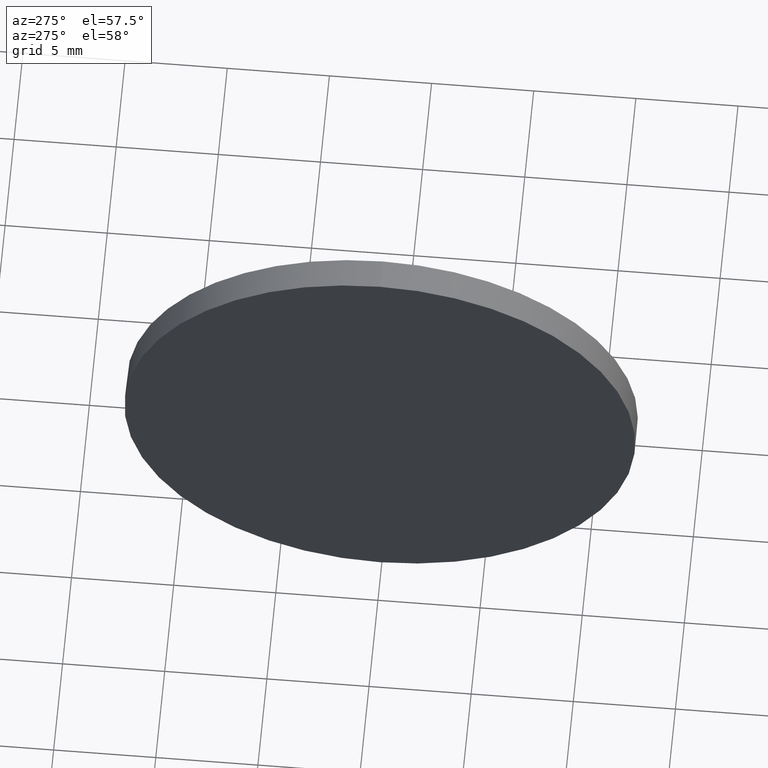
[diagram: clean part render]
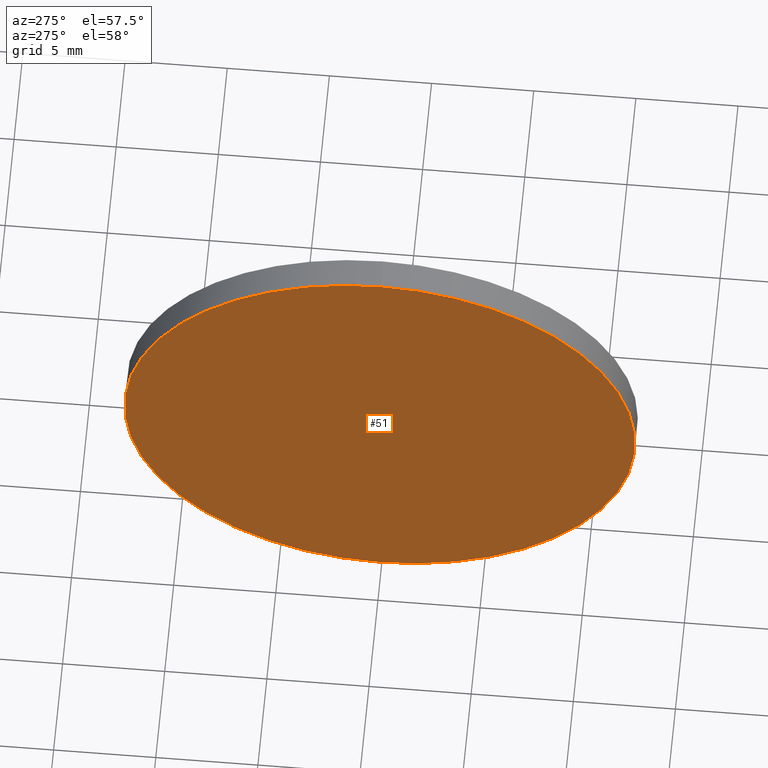
[diagram: same view with one face highlighted and labeled with its STEP entity id]
A machine part, auxiliary view. The second image highlights one B-rep face of the part: STEP entity #51.
In plain terms, the highlighted planar face has unit normal (1, 0, 0).
Its self-contained STEP definition (entity closure, byte-faithful):
#2 = DIRECTION ( 'NONE',  ( 1.000000000000000000, 0.0000000000000000000, 0.0000000000000000000 ) ) ;
#4 = AXIS2_PLACEMENT_3D ( 'NONE', #31, #2, #58 ) ;
#8 = FACE_OUTER_BOUND ( 'NONE', #87, .T. ) ;
#23 = CARTESIAN_POINT ( 'NONE',  ( 426.8600550591363600, -24.92783604908413500, 12.49999999999999800 ) ) ;
#29 = VERTEX_POINT ( 'NONE', #88 ) ;
#31 = CARTESIAN_POINT ( 'NONE',  ( 426.8600550591363600, -24.92783604908413500, 0.0000000000000000000 ) ) ;
#51 = ADVANCED_FACE ( 'NONE', ( #8 ), #140, .F. ) ;
#53 = DIRECTION ( 'NONE',  ( 0.0000000000000000000, 0.0000000000000000000, 1.000000000000000000 ) ) ;
#58 = DIRECTION ( 'NONE',  ( 0.0000000000000000000, 0.0000000000000000000, -1.000000000000000000 ) ) ;
#80 = CIRCLE ( 'NONE', #90, 12.49999999999999800 ) ;
#85 = ORIENTED_EDGE ( 'NONE', *, *, #147, .T. ) ;
#87 = EDGE_LOOP ( 'NONE', ( #85, #178 ) ) ;
#88 = CARTESIAN_POINT ( 'NONE',  ( 426.8600550591363600, -24.92783604908413500, -12.49999999999999800 ) ) ;
#89 = CIRCLE ( 'NONE', #96, 12.49999999999999800 ) ;
#90 = AXIS2_PLACEMENT_3D ( 'NONE', #184, #150, #53 ) ;
#92 = DIRECTION ( 'NONE',  ( 0.0000000000000000000, 0.0000000000000000000, 1.000000000000000000 ) ) ;
#96 = AXIS2_PLACEMENT_3D ( 'NONE', #165, #151, #92 ) ;
#128 = EDGE_CURVE ( 'NONE', #29, #134, #80, .T. ) ;
#134 = VERTEX_POINT ( 'NONE', #23 ) ;
#140 = PLANE ( 'NONE',  #4 ) ;
#147 = EDGE_CURVE ( 'NONE', #134, #29, #89, .T. ) ;
#150 = DIRECTION ( 'NONE',  ( -1.000000000000000000, -0.0000000000000000000, -0.0000000000000000000 ) ) ;
#151 = DIRECTION ( 'NONE',  ( -1.000000000000000000, -0.0000000000000000000, -0.0000000000000000000 ) ) ;
#165 = CARTESIAN_POINT ( 'NONE',  ( 426.8600550591363600, -24.92783604908413500, 0.0000000000000000000 ) ) ;
#178 = ORIENTED_EDGE ( 'NONE', *, *, #128, .T. ) ;
#184 = CARTESIAN_POINT ( 'NONE',  ( 426.8600550591363600, -24.92783604908413500, 0.0000000000000000000 ) ) ;